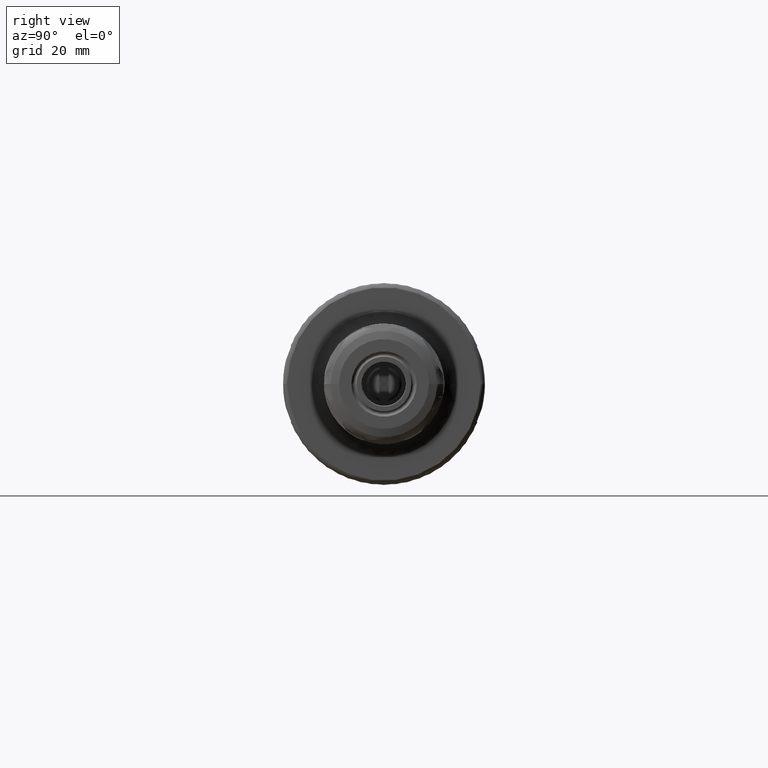
[diagram: clean part render]
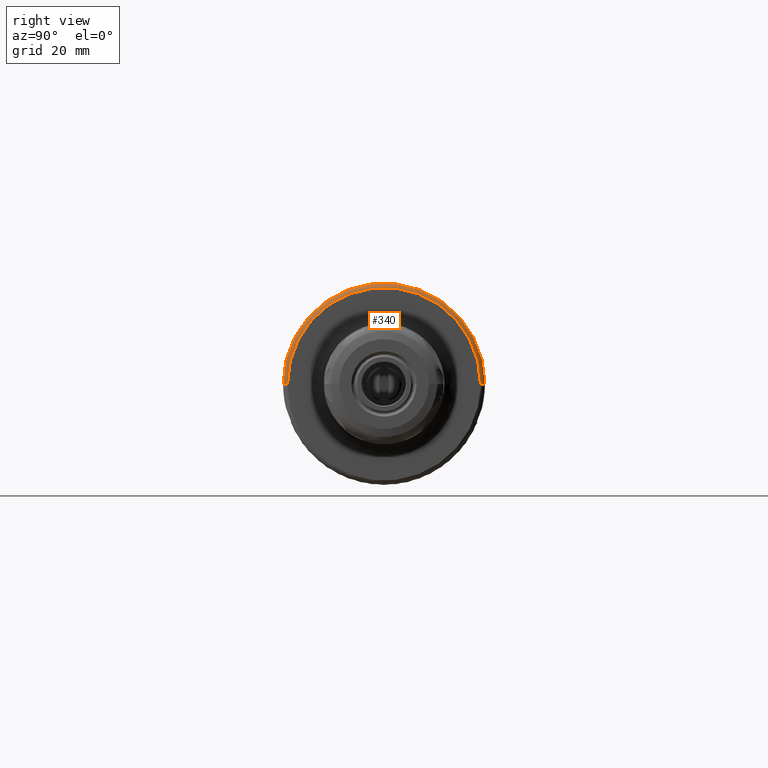
[diagram: same view with one face highlighted and labeled with its STEP entity id]
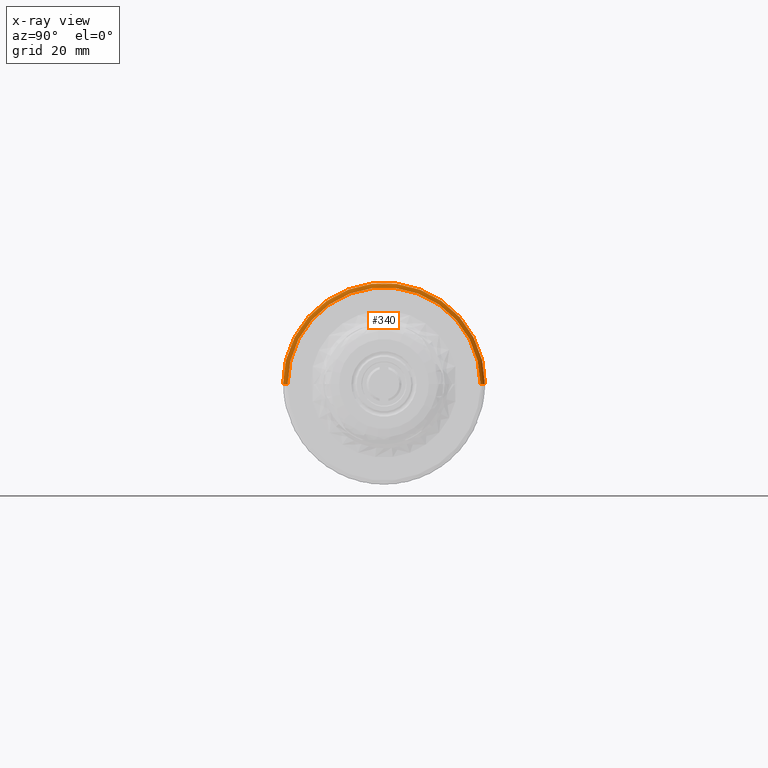
[diagram: x-ray of the same camera — body ghosted, the highlighted face saturated]
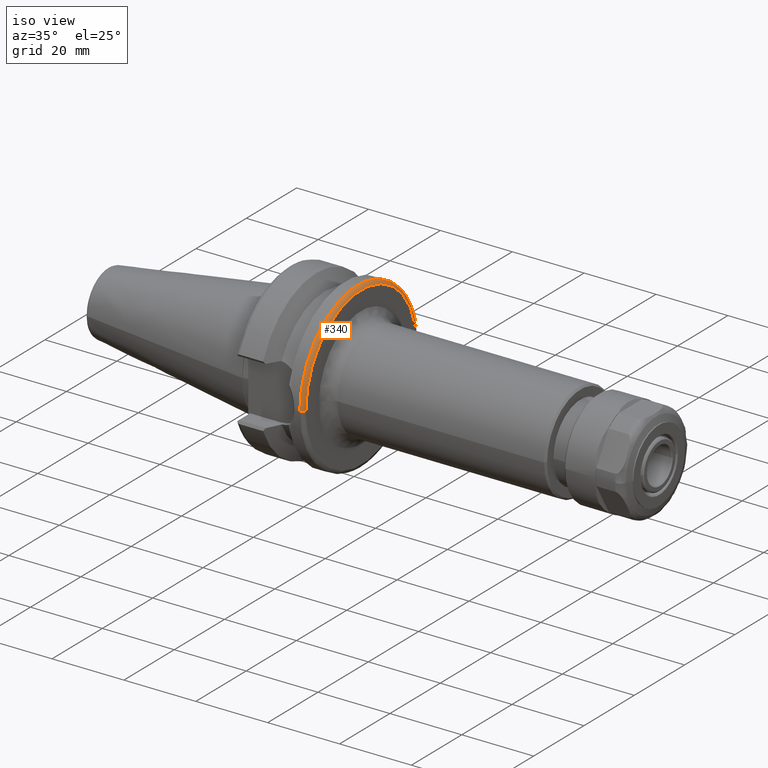
[diagram: same view with one face highlighted and labeled with its STEP entity id]
A machine part, right view. The second image highlights one B-rep face of the part: STEP entity #340.
The next image is the same camera in x-ray: the body ghosted, the highlighted face saturated — about 0% of this face is hidden behind the body in this view.
A second angle (iso view) of the same face is appended — the face is thin or edge-on in the first view.
In plain terms, the highlighted face is a freeform B-spline surface patch.
Its self-contained STEP definition (entity closure, byte-faithful):
#340=ADVANCED_FACE('',(#1936),#1935,.T.);
#1935=( BOUNDED_SURFACE() B_SPLINE_SURFACE( 2,2,((#3632,#3633,#3634,#3635,#3636),(#3637,#3638,#3639,#3640,#3641),(#3642,#3643,#3644,#3645,#3646),(#3647,#3648,#3649,#3650,#3651),(#3652,#3653,#3654,#3655,#3656)), .UNSPECIFIED.,.F.,.F.,.F.) B_SPLINE_SURFACE_WITH_KNOTS((3,2,3),(3,2,3),(0.00000000000E+00,5.00000000000E-01,1.00000000000E+00),(0.00000000000E+00,5.00000000000E-01,1.00000000000E+00), .UNSPECIFIED. ) GEOMETRIC_REPRESENTATION_ITEM() RATIONAL_B_SPLINE_SURFACE(((1.00000000000E+00,7.07106781187E-01,1.00000000000E+00,7.07106781187E-01,1.00000000000E+00),(7.07106781187E-01,5.00000000000E-01,7.07106781187E-01,5.00000000000E-01,7.07106781187E-01),(1.00000000000E+00,7.07106781187E-01,1.00000000000E+00,7.07106781187E-01,1.00000000000E+00),(7.07106781187E-01,5.00000000000E-01,7.07106781187E-01,5.00000000000E-01,7.07106781187E-01),(1.00000000000E+00,7.07106781187E-01,1.00000000000E+00,7.07106781187E-01,1.00000000000E+00))) REPRESENTATION_ITEM('') SURFACE() );
#1936=FACE_OUTER_BOUND('',#3657,.T.);
#3632=CARTESIAN_POINT('',(2.10000000000E+01,2.30000000000E+01,0.00000000000E+00));
#3633=CARTESIAN_POINT('',(2.20000000000E+01,2.30000000000E+01,0.00000000000E+00));
#3634=CARTESIAN_POINT('',(2.20000000000E+01,2.20000000000E+01,0.00000000000E+00));
#3635=CARTESIAN_POINT('',(2.20000000000E+01,2.10000000000E+01,0.00000000000E+00));
#3636=CARTESIAN_POINT('',(2.10000000000E+01,2.10000000000E+01,0.00000000000E+00));
#3637=CARTESIAN_POINT('',(2.10000000000E+01,2.30000000000E+01,2.30000000000E+01));
#3638=CARTESIAN_POINT('',(2.20000000000E+01,2.30000000000E+01,2.30000000000E+01));
#3639=CARTESIAN_POINT('',(2.20000000000E+01,2.20000000000E+01,2.20000000000E+01));
#3640=CARTESIAN_POINT('',(2.20000000000E+01,2.10000000000E+01,2.10000000000E+01));
#3641=CARTESIAN_POINT('',(2.10000000000E+01,2.10000000000E+01,2.10000000000E+01));
#3642=CARTESIAN_POINT('',(2.10000000000E+01,1.40834381902E-15,2.30000000000E+01));
#3643=CARTESIAN_POINT('',(2.20000000000E+01,1.40834381902E-15,2.30000000000E+01));
#3644=CARTESIAN_POINT('',(2.20000000000E+01,1.34711147906E-15,2.20000000000E+01));
#3645=CARTESIAN_POINT('',(2.20000000000E+01,1.28587913910E-15,2.10000000000E+01));
#3646=CARTESIAN_POINT('',(2.10000000000E+01,1.28587913910E-15,2.10000000000E+01));
#3647=CARTESIAN_POINT('',(2.10000000000E+01,-2.30000000000E+01,2.30000000000E+01));
#3648=CARTESIAN_POINT('',(2.20000000000E+01,-2.30000000000E+01,2.30000000000E+01));
#3649=CARTESIAN_POINT('',(2.20000000000E+01,-2.20000000000E+01,2.20000000000E+01));
#3650=CARTESIAN_POINT('',(2.20000000000E+01,-2.10000000000E+01,2.10000000000E+01));
#3651=CARTESIAN_POINT('',(2.10000000000E+01,-2.10000000000E+01,2.10000000000E+01));
#3652=CARTESIAN_POINT('',(2.10000000000E+01,-2.30000000000E+01,2.81668763804E-15));
#3653=CARTESIAN_POINT('',(2.20000000000E+01,-2.30000000000E+01,2.81668763804E-15));
#3654=CARTESIAN_POINT('',(2.20000000000E+01,-2.20000000000E+01,2.69422295812E-15));
#3655=CARTESIAN_POINT('',(2.20000000000E+01,-2.10000000000E+01,2.57175827821E-15));
#3656=CARTESIAN_POINT('',(2.10000000000E+01,-2.10000000000E+01,2.57175827821E-15));
#3657=EDGE_LOOP('',(#4700,#4701,#4702,#4703));
#4700=ORIENTED_EDGE('',*,*,#5173,.T.);
#4701=ORIENTED_EDGE('',*,*,#5228,.T.);
#4702=ORIENTED_EDGE('',*,*,#5131,.F.);
#4703=ORIENTED_EDGE('',*,*,#5229,.F.);
#5131=EDGE_CURVE('',#7034,#7035,#7036,.T.);
#5173=EDGE_CURVE('',#7311,#7304,#7312,.T.);
#5228=EDGE_CURVE('',#7304,#7035,#7664,.T.);
#5229=EDGE_CURVE('',#7311,#7034,#7670,.T.);
#7034=VERTEX_POINT('',#9502);
#7035=VERTEX_POINT('',#9503);
#7036=CIRCLE('',#9507,2.20000000000E+01);
#7304=VERTEX_POINT('',#9698);
#7311=VERTEX_POINT('',#9701);
#7312=CIRCLE('',#9705,2.30000000000E+01);
#7664=(BOUNDED_CURVE() B_SPLINE_CURVE(2,(#9890,#9891,#9892),.UNSPECIFIED.,.F.,.F.) B_SPLINE_CURVE_WITH_KNOTS((3,3),(0.00000000000E+00,5.00000000000E-01),.UNSPECIFIED.) CURVE() GEOMETRIC_REPRESENTATION_ITEM() RATIONAL_B_SPLINE_CURVE((1.00000000000E+00,7.07106781187E-01,1.00000000000E+00)) REPRESENTATION_ITEM('') );
#7670=(BOUNDED_CURVE() B_SPLINE_CURVE(3,(#9893,#9894,#9895,#9896,#9897),.UNSPECIFIED.,.F.,.F.) B_SPLINE_CURVE_WITH_KNOTS((4,1,4),(0.00000000000E+00,2.50000001592E-01,5.00000002764E-01),.UNSPECIFIED.) CURVE() GEOMETRIC_REPRESENTATION_ITEM() RATIONAL_B_SPLINE_CURVE((1.00000000000E+00,1.00000000000E+00,1.00000000000E+00,1.00000000000E+00,1.00000000000E+00)) REPRESENTATION_ITEM('') );
#9502=CARTESIAN_POINT('',(2.20000000000E+01,2.20000000000E+01,0.00000000000E+00));
#9503=CARTESIAN_POINT('',(2.20000000000E+01,-2.20000000000E+01,1.18423789293E-15));
#9504=CARTESIAN_POINT('',(2.20000000000E+01,0.00000000000E+00,0.00000000000E+00));
#9505=DIRECTION('',(1.00000000000E+00,0.00000000000E+00,0.00000000000E+00));
#9506=DIRECTION('',(0.00000000000E+00,1.00000000000E+00,-1.22464679915E-16));
#9507=AXIS2_PLACEMENT_3D('',#9504,#9505,#9506);
#9698=CARTESIAN_POINT('',(2.10000000000E+01,-2.30000000000E+01,1.18423789293E-15));
#9701=CARTESIAN_POINT('',(2.10000000000E+01,2.30000000000E+01,0.00000000000E+00));
#9702=CARTESIAN_POINT('',(2.10000000000E+01,0.00000000000E+00,0.00000000000E+00));
#9703=DIRECTION('',(1.00000000000E+00,0.00000000000E+00,0.00000000000E+00));
#9704=DIRECTION('',(0.00000000000E+00,1.00000000000E+00,-1.22464679915E-16));
#9705=AXIS2_PLACEMENT_3D('',#9702,#9703,#9704);
#9890=CARTESIAN_POINT('',(2.10000000000E+01,-2.30000000000E+01,-2.81668763804E-15));
#9891=CARTESIAN_POINT('',(2.20000000000E+01,-2.30000000000E+01,-2.81668763804E-15));
#9892=CARTESIAN_POINT('',(2.20000000000E+01,-2.20000000000E+01,-2.69422295812E-15));
#9893=CARTESIAN_POINT('',(2.10000000000E+01,2.30000000000E+01,2.36847578587E-15));
#9894=CARTESIAN_POINT('',(2.12594504412E+01,2.30022240593E+01,3.28255786185E-15));
#9895=CARTESIAN_POINT('',(2.17833763170E+01,2.27833763104E+01,4.34825762271E-15));
#9896=CARTESIAN_POINT('',(2.20022240613E+01,2.22594504330E+01,3.28255781802E-15));
#9897=CARTESIAN_POINT('',(2.20000000000E+01,2.19999999922E+01,2.36847580008E-15));